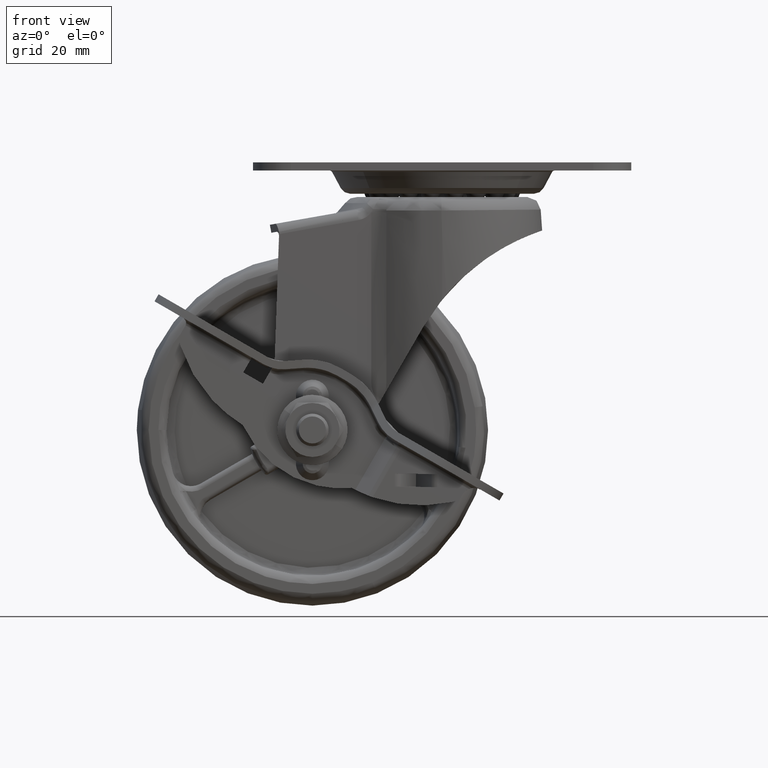
[diagram: clean part render]
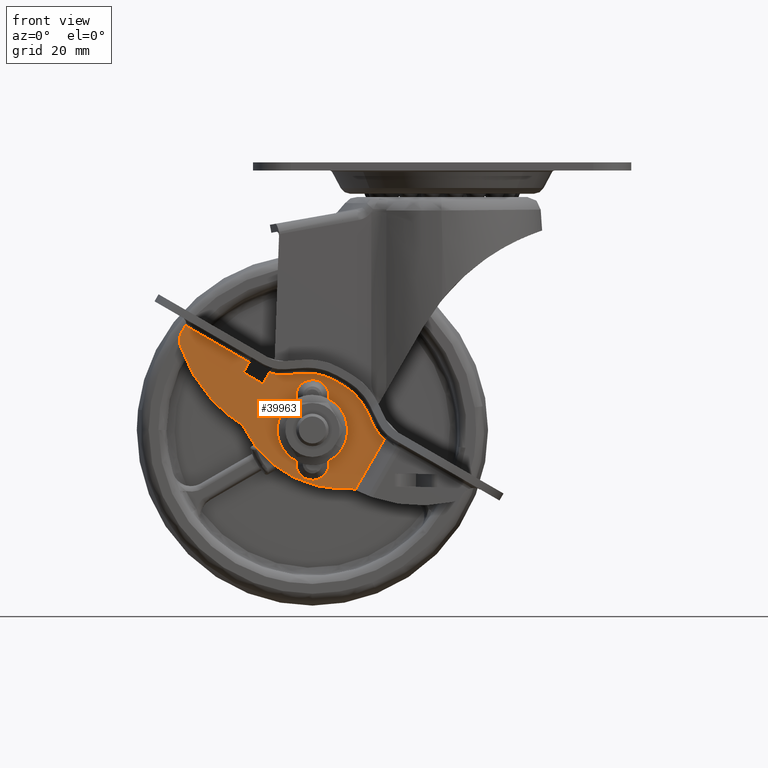
[diagram: same view with one face highlighted and labeled with its STEP entity id]
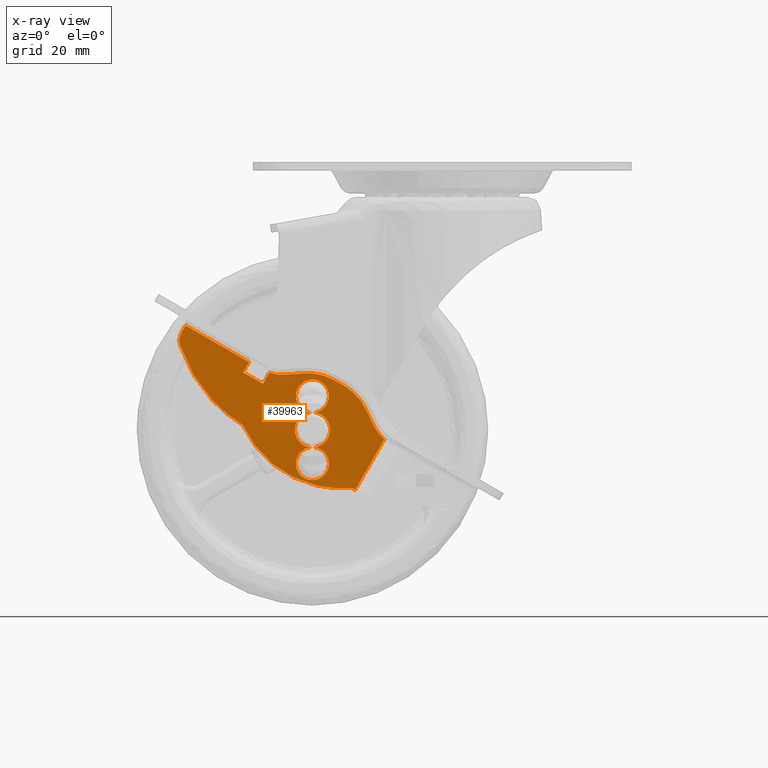
[diagram: x-ray of the same camera — body ghosted, the highlighted face saturated]
A machine part, front view. The second image highlights one B-rep face of the part: STEP entity #39963.
The next image is the same camera in x-ray: the body ghosted, the highlighted face saturated — about 0% of this face is hidden behind the body in this view.
In plain terms, the highlighted face is a freeform B-spline surface patch.
Its self-contained STEP definition (entity closure, byte-faithful):
#35149=CARTESIAN_POINT('',(-18.017215672213030,-16.000019642233958,-39.790541612612913));
#35150=VERTEX_POINT('',#35149);
#35151=CARTESIAN_POINT('',(-19.033357960858549,-16.000019999999999,-41.087434847465950));
#35152=VERTEX_POINT('',#35151);
#35153=CARTESIAN_POINT('',(-18.017215672213030,-16.000019642233958,-39.790541612612913));
#35154=CARTESIAN_POINT('',(-18.120514373103251,-16.000019732529360,-40.029446761748517));
#35155=CARTESIAN_POINT('',(-18.402597348605301,-16.000019893741069,-40.512355435920860));
#35156=CARTESIAN_POINT('',(-18.798453431152272,-16.000019978433269,-40.909015878144643));
#35157=CARTESIAN_POINT('',(-19.033357960858549,-16.000019999999999,-41.087434847465950));
#35158=B_SPLINE_CURVE_WITH_KNOTS('',3,(#35153,#35154,#35155,#35156,#35157),.UNSPECIFIED.,.F.,.U.,(4,1,4),(0.000000021618571,0.780838063789363,1.665757469098318),.UNSPECIFIED.);
#35159=EDGE_CURVE('',#35150,#35152,#35158,.T.);
#35220=CARTESIAN_POINT('',(-18.594735877628370,-16.000017723493809,-36.314318298183338));
#35221=VERTEX_POINT('',#35220);
#35227=CARTESIAN_POINT('',(-22.257111574015301,-16.000016250000051,-35.502973058054948));
#35228=VERTEX_POINT('',#35227);
#35229=CARTESIAN_POINT('',(-22.257111574015301,-16.000016250000051,-35.502973058054948));
#35230=CARTESIAN_POINT('',(-22.026663187920509,-16.000016268296431,-35.406266712717027));
#35231=CARTESIAN_POINT('',(-21.503056545925521,-16.000016344197149,-35.254697168314543));
#35232=CARTESIAN_POINT('',(-20.662847265693120,-16.000016574946230,-35.227804247049761));
#35233=CARTESIAN_POINT('',(-19.947934534780060,-16.000016869906979,-35.400731884860740));
#35234=CARTESIAN_POINT('',(-19.229985005574989,-16.000017248518411,-35.737991274286642));
#35235=CARTESIAN_POINT('',(-18.832687974193831,-16.000017522236721,-36.052095781652412));
#35236=CARTESIAN_POINT('',(-18.594735877628370,-16.000017723493809,-36.314318298183338));
#35237=B_SPLINE_CURVE_WITH_KNOTS('',3,(#35229,#35230,#35231,#35232,#35233,#35234,#35235,#35236),.UNSPECIFIED.,.F.,.U.,(4,1,1,1,1,4),(0.000000121160221,0.749757165791487,1.624502397565848,2.499192261186992,2.936552657182335,3.998712101457427),.UNSPECIFIED.);
#35238=EDGE_CURVE('',#35228,#35221,#35237,.T.);
#35240=CARTESIAN_POINT('',(-22.966956540051100,-16.000015000000001,-35.912804226667362));
#35241=VERTEX_POINT('',#35240);
#35258=CARTESIAN_POINT('',(-19.742579550428751,-16.000018121172850,-41.496897364420199));
#35259=VERTEX_POINT('',#35258);
#35260=CARTESIAN_POINT('',(-19.742579550428751,-16.000018121172850,-41.496897364420199));
#35261=CARTESIAN_POINT('',(-20.148277171262819,-16.000018094564261,-41.667678074325202));
#35262=CARTESIAN_POINT('',(-20.833988373464091,-16.000017984750698,-41.801649745077697));
#35263=CARTESIAN_POINT('',(-21.713260373547211,-16.000017726730100,-41.693822639502251));
#35264=CARTESIAN_POINT('',(-22.294867656954441,-16.000017503814899,-41.497865400532042));
#35265=CARTESIAN_POINT('',(-22.921161466228352,-16.000017210854750,-41.160610743903533));
#35266=CARTESIAN_POINT('',(-23.473933328738010,-16.000016869188510,-40.664708691371523));
#35267=CARTESIAN_POINT('',(-23.918348556291718,-16.000016477225881,-39.986252176577473));
#35268=CARTESIAN_POINT('',(-24.164690015052479,-16.000016147915218,-39.342885872377991));
#35269=CARTESIAN_POINT('',(-24.283279791346910,-16.000015793309359,-38.565409426289939));
#35270=CARTESIAN_POINT('',(-24.209137693805669,-16.000015491626840,-37.802899294968057));
#35271=CARTESIAN_POINT('',(-23.959455616810001,-16.000015261244450,-37.109123642164768));
#35272=CARTESIAN_POINT('',(-23.582667999444560,-16.000015087184462,-36.476318269734243));
#35273=CARTESIAN_POINT('',(-23.220069277139899,-16.000015019327481,-36.105064388150829));
#35274=CARTESIAN_POINT('',(-22.966956540051100,-16.000015000000001,-35.912804226667362));
#35275=B_SPLINE_CURVE_WITH_KNOTS('',3,(#35260,#35261,#35262,#35263,#35264,#35265,#35266,#35267,#35268,#35269,#35270,#35271,#35272,#35273,#35274),.UNSPECIFIED.,.F.,.U.,(4,1,1,1,1,1,1,1,1,1,1,1,4),(0.000000130367040,1.320272135340820,2.053806292533586,2.640623283477431,3.154077773982744,4.181050928594299,4.841103213768497,5.574632400144904,6.234765755835642,7.188351364320509,7.848531124568781,8.435341406021870,9.388862934907825),.UNSPECIFIED.);
#35276=EDGE_CURVE('',#35259,#35241,#35275,.T.);
#35311=CARTESIAN_POINT('',(-18.594735877628370,-16.000017723493809,-36.314318298183338));
#35312=CARTESIAN_POINT('',(-18.333548100716708,-16.000017943952670,-36.601256558219909));
#35313=CARTESIAN_POINT('',(-18.031103947591671,-16.000018276130550,-37.086193956310062));
#35314=CARTESIAN_POINT('',(-17.801946041968719,-16.000018717453521,-37.830142667729682));
#35315=CARTESIAN_POINT('',(-17.722623992014761,-16.000019071904131,-38.488104875262742));
#35316=CARTESIAN_POINT('',(-17.793628879964441,-16.000019394025731,-39.168659206889153));
#35317=CARTESIAN_POINT('',(-17.940188228852801,-16.000019574968430,-39.612521121411248));
#35318=CARTESIAN_POINT('',(-18.017215672213030,-16.000019642233958,-39.790541612612913));
#35319=B_SPLINE_CURVE_WITH_KNOTS('',3,(#35311,#35312,#35313,#35314,#35315,#35316,#35317,#35318),.UNSPECIFIED.,.F.,.U.,(4,1,1,1,1,4),(0.000000114462116,1.163877346851357,1.687620793080430,2.327719666091285,3.142454352687946,3.724383359170298),.UNSPECIFIED.);
#35320=EDGE_CURVE('',#35221,#35150,#35319,.T.);
#37277=CARTESIAN_POINT('',(-50.999996474084703,-16.000019999999999,-33.499954826185700));
#37278=VERTEX_POINT('',#37277);
#37296=CARTESIAN_POINT('',(-37.399987022369650,-16.000019999999999,-33.499976000744397));
#37297=VERTEX_POINT('',#37296);
#37298=CARTESIAN_POINT('',(-37.399987022369650,-16.000019999999999,-33.499976000744397));
#37299=CARTESIAN_POINT('',(-50.999996474084703,-16.000019999999999,-33.499954826185700));
#37300=QUASI_UNIFORM_CURVE('',1,(#37298,#37299),.UNSPECIFIED.,.F.,.U.);
#37301=EDGE_CURVE('',#37297,#37278,#37300,.T.);
#37523=CARTESIAN_POINT('',(-8.591051855042210,-16.000019999999999,-33.359829136149301));
#37524=VERTEX_POINT('',#37523);
#37525=CARTESIAN_POINT('',(-11.590906914351059,-16.000019999999999,-32.120551547690752));
#37526=VERTEX_POINT('',#37525);
#37527=CARTESIAN_POINT('',(-8.591051855042210,-16.000019999999999,-33.359829136149301));
#37528=CARTESIAN_POINT('',(-8.958998520500520,-16.000019999999999,-33.290034882765980));
#37529=CARTESIAN_POINT('',(-10.015120655489991,-16.000020000000021,-33.011707240791907));
#37530=CARTESIAN_POINT('',(-10.999345148026601,-16.000019999999960,-32.522163327138500));
#37531=CARTESIAN_POINT('',(-11.590906914351059,-16.000019999999999,-32.120551547690752));
#37532=B_SPLINE_CURVE_WITH_KNOTS('',3,(#37527,#37528,#37529,#37530,#37531),.UNSPECIFIED.,.F.,.U.,(4,1,4),(7.718829E-009,1.123535371765152,3.268463587536225),.UNSPECIFIED.);
#37533=EDGE_CURVE('',#37524,#37526,#37532,.T.);
#37581=CARTESIAN_POINT('',(-14.386316347930640,-16.000019999999999,-30.224318083926502));
#37582=VERTEX_POINT('',#37581);
#37593=CARTESIAN_POINT('',(-11.590906914351059,-16.000019999999999,-32.120551547690752));
#37594=CARTESIAN_POINT('',(-14.386316347930640,-16.000019999999999,-30.224318083926502));
#37595=QUASI_UNIFORM_CURVE('',1,(#37593,#37594),.UNSPECIFIED.,.F.,.U.);
#37596=EDGE_CURVE('',#37526,#37582,#37595,.T.);
#37626=CARTESIAN_POINT('',(-20.009322474650052,-16.000019999999999,-28.499997121869299));
#37627=VERTEX_POINT('',#37626);
#37639=CARTESIAN_POINT('',(-14.386316347930640,-16.000019999999999,-30.224318083926502));
#37640=CARTESIAN_POINT('',(-15.106648656345310,-16.000020000000031,-29.735326749964639));
#37641=CARTESIAN_POINT('',(-16.227702760894719,-16.000019999999971,-29.172812739318889));
#37642=CARTESIAN_POINT('',(-18.143739631440479,-16.000020000000060,-28.624163540042950));
#37643=CARTESIAN_POINT('',(-19.263093624900971,-16.000019999999921,-28.499145585770471));
#37644=CARTESIAN_POINT('',(-20.009322474650052,-16.000019999999999,-28.499997121869299));
#37645=B_SPLINE_CURVE_WITH_KNOTS('',3,(#37639,#37640,#37641,#37642,#37643,#37644),.UNSPECIFIED.,.F.,.U.,(4,1,1,4),(0.000000017899257,2.611769546903970,3.731076798423298,5.969723327883722),.UNSPECIFIED.);
#37646=EDGE_CURVE('',#37582,#37627,#37645,.T.);
#37677=CARTESIAN_POINT('',(-21.999974069257298,-16.000019999999999,-28.499993780895501));
#37678=VERTEX_POINT('',#37677);
#37689=CARTESIAN_POINT('',(-20.009322474650052,-16.000019999999999,-28.499997121869299));
#37690=CARTESIAN_POINT('',(-21.999974069257298,-16.000019999999999,-28.499993780895501));
#37691=QUASI_UNIFORM_CURVE('',1,(#37689,#37690),.UNSPECIFIED.,.F.,.U.);
#37692=EDGE_CURVE('',#37627,#37678,#37691,.T.);
#37722=CARTESIAN_POINT('',(-27.613634387779602,-16.000019999999999,-30.224307091977352));
#37723=VERTEX_POINT('',#37722);
#37735=CARTESIAN_POINT('',(-21.999974069257298,-16.000019999999999,-28.499993780895501));
#37736=CARTESIAN_POINT('',(-22.745033525756519,-16.000020000000010,-28.499839709472869));
#37737=CARTESIAN_POINT('',(-23.986697403478281,-16.000020000000010,-28.639455758445798));
#37738=CARTESIAN_POINT('',(-25.891196725819700,-16.000019999999989,-29.224433879227799));
#37739=CARTESIAN_POINT('',(-26.997132411869782,-16.000020000000031,-29.805934619115639));
#37740=CARTESIAN_POINT('',(-27.613634387779602,-16.000019999999999,-30.224307091977352));
#37741=B_SPLINE_CURVE_WITH_KNOTS('',3,(#37735,#37736,#37737,#37738,#37739,#37740),.UNSPECIFIED.,.F.,.U.,(4,1,1,4),(0.000000017759270,2.235140436910444,3.725233287092065,5.960373706243392),.UNSPECIFIED.);
#37742=EDGE_CURVE('',#37678,#37723,#37741,.T.);
#37773=CARTESIAN_POINT('',(-30.409052492330950,-16.000019999999999,-32.120522801584002));
#37774=VERTEX_POINT('',#37773);
#37785=CARTESIAN_POINT('',(-27.613634387779602,-16.000019999999999,-30.224307091977352));
#37786=CARTESIAN_POINT('',(-30.409052492330950,-16.000019999999999,-32.120522801584002));
#37787=QUASI_UNIFORM_CURVE('',1,(#37785,#37786),.UNSPECIFIED.,.F.,.U.);
#37788=EDGE_CURVE('',#37723,#37774,#37787,.T.);
#37816=CARTESIAN_POINT('',(-33.199990282989752,-16.000019999999999,-33.317269343655099));
#37817=VERTEX_POINT('',#37816);
#37845=CARTESIAN_POINT('',(-30.409052492330950,-16.000019999999999,-32.120522801584002));
#37846=CARTESIAN_POINT('',(-30.804095709526969,-16.000020000000031,-32.388546851677063));
#37847=CARTESIAN_POINT('',(-31.698238753433220,-16.000019999999960,-32.884537006971769));
#37848=CARTESIAN_POINT('',(-32.671298375162742,-16.000020000000049,-33.202370636357827));
#37849=CARTESIAN_POINT('',(-33.199990282989752,-16.000019999999999,-33.317269343655099));
#37850=B_SPLINE_CURVE_WITH_KNOTS('',3,(#37845,#37846,#37847,#37848,#37849),.UNSPECIFIED.,.F.,.U.,(4,1,4),(7.403998E-009,1.432156357364973,3.055249489058249),.UNSPECIFIED.);
#37851=EDGE_CURVE('',#37774,#37817,#37850,.T.);
#38117=CARTESIAN_POINT('',(-33.199997096650158,-16.000019999999999,-35.699980003479503));
#38118=VERTEX_POINT('',#38117);
#38124=CARTESIAN_POINT('',(-33.199990282989752,-16.000019999999999,-33.317269343655099));
#38125=CARTESIAN_POINT('',(-33.199997096650158,-16.000019999999999,-35.699980003479503));
#38126=QUASI_UNIFORM_CURVE('',1,(#38124,#38125),.UNSPECIFIED.,.F.,.U.);
#38127=EDGE_CURVE('',#37817,#38118,#38126,.T.);
#38146=CARTESIAN_POINT('',(-37.399989431802247,-16.000019999999999,-35.699971686548487));
#38147=VERTEX_POINT('',#38146);
#38153=CARTESIAN_POINT('',(-33.199997096650158,-16.000019999999999,-35.699980003479503));
#38154=CARTESIAN_POINT('',(-37.399989431802247,-16.000019999999999,-35.699971686548487));
#38155=QUASI_UNIFORM_CURVE('',1,(#38153,#38154),.UNSPECIFIED.,.F.,.U.);
#38156=EDGE_CURVE('',#38118,#38147,#38155,.T.);
#38173=CARTESIAN_POINT('',(-37.399989431802247,-16.000019999999999,-35.699971686548487));
#38174=CARTESIAN_POINT('',(-37.399987022369650,-16.000019999999999,-33.499976000744397));
#38175=QUASI_UNIFORM_CURVE('',1,(#38173,#38174),.UNSPECIFIED.,.F.,.U.);
#38176=EDGE_CURVE('',#38147,#37297,#38175,.T.);
#38944=CARTESIAN_POINT('',(-8.591051855042210,-16.000019999999999,-44.155019952589747));
#38945=VERTEX_POINT('',#38944);
#38953=CARTESIAN_POINT('',(-9.395997085352839,-16.000019999999999,-44.189532433555897));
#38954=VERTEX_POINT('',#38953);
#38955=CARTESIAN_POINT('',(-9.395997085352839,-16.000019999999999,-44.189532433555897));
#38956=CARTESIAN_POINT('',(-9.127532548394717,-16.000019999999999,-44.182032719499787));
#38957=CARTESIAN_POINT('',(-8.859172329113953,-16.000020000000010,-44.170526632056600));
#38958=CARTESIAN_POINT('',(-8.591051855042210,-16.000019999999999,-44.155019952589747));
#38959=B_SPLINE_CURVE_WITH_KNOTS('',3,(#38955,#38956,#38957,#38958),.UNSPECIFIED.,.F.,.U.,(4,4),(2.600475E-011,0.805716525155901),.UNSPECIFIED.);
#38960=EDGE_CURVE('',#38954,#38945,#38959,.T.);
#39034=CARTESIAN_POINT('',(-50.018823741829003,-16.000019999999999,-37.172207154365900));
#39035=VERTEX_POINT('',#39034);
#39041=CARTESIAN_POINT('',(-50.999999807819897,-16.000019999999999,-34.953203272540001));
#39042=VERTEX_POINT('',#39041);
#39043=CARTESIAN_POINT('',(-50.999999807819897,-16.000019999999999,-34.953203272540001));
#39044=CARTESIAN_POINT('',(-51.000162993270123,-16.000020000000038,-35.265445217479432));
#39045=CARTESIAN_POINT('',(-50.905718606172911,-16.000019999999950,-35.863778513361332));
#39046=CARTESIAN_POINT('',(-50.535832659047173,-16.000020000000060,-36.619223555950363));
#39047=CARTESIAN_POINT('',(-50.192054341924617,-16.000019999999971,-37.014655384102092));
#39048=CARTESIAN_POINT('',(-50.018823741829003,-16.000019999999999,-37.172207154365900));
#39049=B_SPLINE_CURVE_WITH_KNOTS('',3,(#39043,#39044,#39045,#39046,#39047,#39048),.UNSPECIFIED.,.F.,.U.,(4,1,1,4),(0.000000024321927,0.936696721989518,1.795330519379720,2.497851190716176),.UNSPECIFIED.);
#39050=EDGE_CURVE('',#39042,#39035,#39049,.T.);
#39087=CARTESIAN_POINT('',(-32.604026337628547,-16.000019999999999,-44.189493250757003));
#39088=VERTEX_POINT('',#39087);
#39094=CARTESIAN_POINT('',(-50.018823741829003,-16.000019999999999,-37.172207154365900));
#39095=CARTESIAN_POINT('',(-49.021493081695603,-16.000019999999981,-38.079540329223143));
#39096=CARTESIAN_POINT('',(-46.693300477469073,-16.000020000000070,-39.898654845984083));
#39097=CARTESIAN_POINT('',(-43.084695386785903,-16.000019999999829,-41.867990767086582));
#39098=CARTESIAN_POINT('',(-39.367147347419653,-16.000020000000230,-43.212210914277499));
#39099=CARTESIAN_POINT('',(-35.994509135825389,-16.000019999999878,-43.954299070087309));
#39100=CARTESIAN_POINT('',(-33.702217936087067,-16.000020000000230,-44.158830608696483));
#39101=CARTESIAN_POINT('',(-32.604026337628547,-16.000019999999999,-44.189493250757003));
#39102=B_SPLINE_CURVE_WITH_KNOTS('',3,(#39094,#39095,#39096,#39097,#39098,#39099,#39100,#39101),.UNSPECIFIED.,.F.,.U.,(4,1,1,1,1,4),(0.000000015336784,4.044924212270459,8.838921473894182,12.284595710577770,15.880095486155071,19.175955233069711),.UNSPECIFIED.);
#39103=EDGE_CURVE('',#39035,#39088,#39102,.T.);
#39138=CARTESIAN_POINT('',(-32.604026337628547,-16.000019999999999,-44.189493250757003));
#39139=CARTESIAN_POINT('',(-31.238891251607932,-16.000020000000021,-45.162581609353239));
#39140=CARTESIAN_POINT('',(-29.235191292367169,-16.000019999999981,-46.238886540822932));
#39141=CARTESIAN_POINT('',(-26.114955464712160,-16.000020000000021,-47.286659300341839));
#39142=CARTESIAN_POINT('',(-23.771372699083319,-16.000019999999989,-47.769333822442761));
#39143=CARTESIAN_POINT('',(-21.129437402417519,-16.000020000000021,-47.948422476495523));
#39144=CARTESIAN_POINT('',(-18.613446960224209,-16.000019999999989,-47.814488802910333));
#39145=CARTESIAN_POINT('',(-16.008452048791959,-16.000020000000010,-47.330345927788692));
#39146=CARTESIAN_POINT('',(-12.817644442126820,-16.000019999999971,-46.275992456353720));
#39147=CARTESIAN_POINT('',(-10.656164341799240,-16.000020000000060,-45.087672072015764));
#39148=CARTESIAN_POINT('',(-9.395997085352839,-16.000019999999999,-44.189532433555897));
#39149=B_SPLINE_CURVE_WITH_KNOTS('',3,(#39138,#39139,#39140,#39141,#39142,#39143,#39144,#39145,#39146,#39147,#39148),.UNSPECIFIED.,.F.,.U.,(4,1,1,1,1,1,1,1,4),(0.000000023966610,5.029185978321582,6.770067587638945,9.864970162153835,12.186128679911180,14.700702803575510,17.408742882780562,20.116776339846300,24.759101577735191),.UNSPECIFIED.);
#39150=EDGE_CURVE('',#39088,#38954,#39149,.T.);
#39478=CARTESIAN_POINT('',(-50.999999807819897,-16.000019999999999,-34.953203272540001));
#39479=CARTESIAN_POINT('',(-50.999996474084703,-16.000019999999999,-33.499954826185700));
#39480=QUASI_UNIFORM_CURVE('',1,(#39478,#39479),.UNSPECIFIED.,.F.,.U.);
#39481=EDGE_CURVE('',#39042,#37278,#39480,.T.);
#39503=CARTESIAN_POINT('',(-8.591051855042210,-16.000019999999999,-33.359829136149301));
#39504=CARTESIAN_POINT('',(-8.591051855042210,-16.000019999999999,-44.155019952589747));
#39505=QUASI_UNIFORM_CURVE('',1,(#39503,#39504),.UNSPECIFIED.,.F.,.U.);
#39506=EDGE_CURVE('',#37524,#38945,#39505,.T.);
#39746=CARTESIAN_POINT('',(-22.718405054129349,-16.000019549309471,-30.377136198804472));
#39747=VERTEX_POINT('',#39746);
#39748=CARTESIAN_POINT('',(-22.718405054129349,-16.000019549309471,-30.377136198804472));
#39749=CARTESIAN_POINT('',(-22.421143599603539,-16.000019824470641,-30.531144162413121));
#39750=CARTESIAN_POINT('',(-22.020612648537739,-16.000020124189959,-30.831811397043150));
#39751=CARTESIAN_POINT('',(-21.575575751883932,-16.000020296439040,-31.376734983662381));
#39752=CARTESIAN_POINT('',(-21.273301260346450,-16.000020278579029,-31.923706220374299));
#39753=CARTESIAN_POINT('',(-21.061817120709531,-16.000019992372721,-32.665347888735639));
#39754=CARTESIAN_POINT('',(-21.059130242282929,-16.000019418325941,-33.422831917503302));
#39755=CARTESIAN_POINT('',(-21.244947595383081,-16.000018591666120,-34.185108757439139));
#39756=CARTESIAN_POINT('',(-21.605116381160791,-16.000017580821730,-34.886951387549203));
#39757=CARTESIAN_POINT('',(-22.017423192611489,-16.000016707747989,-35.317809648856773));
#39758=CARTESIAN_POINT('',(-22.257111574015301,-16.000016250000051,-35.502973058054948));
#39759=B_SPLINE_CURVE_WITH_KNOTS('',3,(#39748,#39749,#39750,#39751,#39752,#39753,#39754,#39755,#39756,#39757,#39758),.UNSPECIFIED.,.F.,.U.,(4,1,1,1,1,1,1,1,4),(0.000000310179895,1.004260975471072,1.482502022105747,2.104211987417568,2.869411103436465,3.777977246822137,4.351853382136952,5.212691150588297,6.121293148353177),.UNSPECIFIED.);
#39760=EDGE_CURVE('',#39747,#35228,#39759,.T.);
#39762=CARTESIAN_POINT('',(-27.175443142257620,-16.000011700696881,-32.950421334112711));
#39763=VERTEX_POINT('',#39762);
#39764=CARTESIAN_POINT('',(-27.175443142257620,-16.000011700696881,-32.950421334112711));
#39765=CARTESIAN_POINT('',(-27.162661351994831,-16.000011936149630,-32.663776617507182));
#39766=CARTESIAN_POINT('',(-27.055454000878949,-16.000012512053729,-32.094196860036348));
#39767=CARTESIAN_POINT('',(-26.649083593357851,-16.000013662445170,-31.289369114603382));
#39768=CARTESIAN_POINT('',(-26.034212726907871,-16.000014962569630,-30.649304256365522));
#39769=CARTESIAN_POINT('',(-25.334638278642590,-16.000016188845439,-30.252797263745862));
#39770=CARTESIAN_POINT('',(-24.734188433828429,-16.000017113892891,-30.079647489697869));
#39771=CARTESIAN_POINT('',(-24.162256256192119,-16.000017916798409,-30.017286733037800));
#39772=CARTESIAN_POINT('',(-23.490434534285558,-16.000018767398949,-30.065387923583788));
#39773=CARTESIAN_POINT('',(-22.987171212271480,-16.000019300827820,-30.237494793200192));
#39774=CARTESIAN_POINT('',(-22.718405054129349,-16.000019549309471,-30.377136198804472));
#39775=B_SPLINE_CURVE_WITH_KNOTS('',3,(#39764,#39765,#39766,#39767,#39768,#39769,#39770,#39771,#39772,#39773,#39774),.UNSPECIFIED.,.F.,.U.,(4,1,1,1,1,1,1,1,4),(0.000000310071613,0.860776723820931,1.721616682652161,2.678072813706866,3.491001427478537,4.112730394099772,4.543144199859666,5.212689799854311,6.121291562092780),.UNSPECIFIED.);
#39776=EDGE_CURVE('',#39763,#39747,#39775,.T.);
#39778=CARTESIAN_POINT('',(-22.966956540051100,-16.000015000000001,-35.912804226667362));
#39779=CARTESIAN_POINT('',(-23.320868043143069,-16.000014421662780,-36.058275154405372));
#39780=CARTESIAN_POINT('',(-23.909112042333209,-16.000013553844511,-36.177512991145420));
#39781=CARTESIAN_POINT('',(-24.643308640861552,-16.000012634042900,-36.112129290756982));
#39782=CARTESIAN_POINT('',(-25.199147120284621,-16.000012013122131,-35.963702215088169));
#39783=CARTESIAN_POINT('',(-25.735721849417171,-16.000011497598969,-35.710417045782783));
#39784=CARTESIAN_POINT('',(-26.204319480311689,-16.000011156251482,-35.346449276102632));
#39785=CARTESIAN_POINT('',(-26.641481951816381,-16.000010951028109,-34.858408667449822));
#39786=CARTESIAN_POINT('',(-26.952882905848352,-16.000010955482399,-34.313210406976353));
#39787=CARTESIAN_POINT('',(-27.154691935474851,-16.000011216387481,-33.621508143785192));
#39788=CARTESIAN_POINT('',(-27.186223247890052,-16.000011504317548,-33.189290263853472));
#39789=CARTESIAN_POINT('',(-27.175443142257620,-16.000011700696881,-32.950421334112711));
#39790=B_SPLINE_CURVE_WITH_KNOTS('',3,(#39778,#39779,#39780,#39781,#39782,#39783,#39784,#39785,#39786,#39787,#39788,#39789),.UNSPECIFIED.,.F.,.U.,(4,1,1,1,1,1,1,1,1,4),(0.000000310195257,1.147743376130833,1.769451661931250,2.199847864966079,2.869417982486868,3.538866875892420,3.969258266089974,4.830098098391975,5.403975609187953,6.121307822781929),.UNSPECIFIED.);
#39791=EDGE_CURVE('',#35241,#39763,#39790,.T.);
#39828=CARTESIAN_POINT('',(-19.281728948834871,-16.000013156738390,-46.622905931643452));
#39829=VERTEX_POINT('',#39828);
#39830=CARTESIAN_POINT('',(-19.281728948834871,-16.000013156738390,-46.622905931643452));
#39831=CARTESIAN_POINT('',(-19.607338018479769,-16.000012703277939,-46.454236729809359));
#39832=CARTESIAN_POINT('',(-20.068096401576700,-16.000012197837751,-46.096793552380127));
#39833=CARTESIAN_POINT('',(-20.577951041762539,-16.000011986910270,-45.397568586094337));
#39834=CARTESIAN_POINT('',(-20.833279395517430,-16.000012197813199,-44.771466416062196));
#39835=CARTESIAN_POINT('',(-20.953197421772241,-16.000012811209690,-44.029027087599282));
#39836=CARTESIAN_POINT('',(-20.906906095477979,-16.000013695504268,-43.338316218110812));
#39837=CARTESIAN_POINT('',(-20.661506458398769,-16.000015039522509,-42.591706563297457));
#39838=CARTESIAN_POINT('',(-20.276875074523328,-16.000016506986341,-41.978641130084320));
#39839=CARTESIAN_POINT('',(-19.919149665134171,-16.000017613800669,-41.633371648330602));
#39840=CARTESIAN_POINT('',(-19.742579550428751,-16.000018121172850,-41.496897364420199));
#39841=B_SPLINE_CURVE_WITH_KNOTS('',3,(#39830,#39831,#39832,#39833,#39834,#39835,#39836,#39837,#39838,#39839,#39840),.UNSPECIFIED.,.F.,.U.,(4,1,1,1,1,1,1,1,4),(0.000000310150997,1.099948217464837,1.721685210167542,2.582550165080400,3.108534420292155,3.969405712020887,4.638977965256303,5.452030596699525,6.121535214211643),.UNSPECIFIED.);
#39842=EDGE_CURVE('',#39829,#35259,#39841,.T.);
#39844=CARTESIAN_POINT('',(-14.824550902119899,-16.000024964441121,-44.049582440300647));
#39845=VERTEX_POINT('',#39844);
#39846=CARTESIAN_POINT('',(-14.824550902119899,-16.000024964441121,-44.049582440300647));
#39847=CARTESIAN_POINT('',(-14.839365398771740,-16.000024551345941,-44.384041656075929));
#39848=CARTESIAN_POINT('',(-14.977298436205411,-16.000023534027811,-45.031987315581020));
#39849=CARTESIAN_POINT('',(-15.401711659755721,-16.000021860363429,-45.755904896326633));
#39850=CARTESIAN_POINT('',(-15.904705025999640,-16.000020269939249,-46.271151125401623));
#39851=CARTESIAN_POINT('',(-16.406990963985859,-16.000018876110470,-46.616238860308023));
#39852=CARTESIAN_POINT('',(-17.044155293621429,-16.000017309278149,-46.878525745480019));
#39853=CARTESIAN_POINT('',(-17.725848422217219,-16.000015825944828,-46.990894428088303));
#39854=CARTESIAN_POINT('',(-18.509683283381580,-16.000014333031139,-46.934698790363633));
#39855=CARTESIAN_POINT('',(-19.012957882755870,-16.000013530547019,-46.762564961792620));
#39856=CARTESIAN_POINT('',(-19.281728948834871,-16.000013156738390,-46.622905931643452));
#39857=B_SPLINE_CURVE_WITH_KNOTS('',3,(#39846,#39847,#39848,#39849,#39850,#39851,#39852,#39853,#39854,#39855,#39856),.UNSPECIFIED.,.F.,.U.,(4,1,1,1,1,1,1,1,4),(0.000000310252837,1.004303268710667,1.960811808165285,2.486919998616886,3.156382557772899,3.778136356208744,4.543336714257285,5.212910688864031,6.121550950318430),.UNSPECIFIED.);
#39858=EDGE_CURVE('',#39845,#39829,#39857,.T.);
#39860=CARTESIAN_POINT('',(-19.033357960858549,-16.000019999999999,-41.087434847465950));
#39861=CARTESIAN_POINT('',(-18.767897238939419,-16.000020652395399,-40.978499987889769));
#39862=CARTESIAN_POINT('',(-18.206018680132509,-16.000021931935411,-40.836262588496972));
#39863=CARTESIAN_POINT('',(-17.369257691646322,-16.000023562083811,-40.864494529038261));
#39864=CARTESIAN_POINT('',(-16.555719128506119,-16.000024889758642,-41.116187402099563));
#39865=CARTESIAN_POINT('',(-15.919646967104020,-16.000025681622660,-41.527593620954342));
#39866=CARTESIAN_POINT('',(-15.426496816933881,-16.000026058806782,-42.052949824134430));
#39867=CARTESIAN_POINT('',(-15.074181362447380,-16.000026100252690,-42.627052995560149));
#39868=CARTESIAN_POINT('',(-14.849938912048160,-16.000025757311761,-43.314417850718968));
#39869=CARTESIAN_POINT('',(-14.813792180419600,-16.000025259835081,-43.810704986479422));
#39870=CARTESIAN_POINT('',(-14.824550902119899,-16.000024964441121,-44.049582440300647));
#39871=B_SPLINE_CURVE_WITH_KNOTS('',3,(#39860,#39861,#39862,#39863,#39864,#39865,#39866,#39867,#39868,#39869,#39870),.UNSPECIFIED.,.F.,.U.,(4,1,1,1,1,1,1,1,4),(0.000000310278611,0.860812092487168,1.721687428269505,2.486916809296416,3.395502435022751,3.969410825214342,4.638983941194436,5.404183317382669,6.121543100028024),.UNSPECIFIED.);
#39872=EDGE_CURVE('',#35152,#39845,#39871,.T.);
#39927=CARTESIAN_POINT('',(-53.118327073969233,-16.000019999999999,-48.869079869922508));
#39928=CARTESIAN_POINT('',(-6.472723830561784,-16.000019999999999,-48.869079869922508));
#39929=CARTESIAN_POINT('',(-53.118327073969233,-16.000019999999999,-27.530962081608539));
#39930=CARTESIAN_POINT('',(-6.472723830561784,-16.000019999999999,-27.530962081608539));
#39931=B_SPLINE_SURFACE_WITH_KNOTS('',1,1,((#39927,#39929),(#39928,#39930)),.UNSPECIFIED.,.F.,.F.,.U.,(2,2),(2,2),(0.0,46.645603243407450),(0.0,21.338117788313969),.UNSPECIFIED.);
#39932=ORIENTED_EDGE('',*,*,#39506,.F.);
#39933=ORIENTED_EDGE('',*,*,#37533,.T.);
#39934=ORIENTED_EDGE('',*,*,#37596,.T.);
#39935=ORIENTED_EDGE('',*,*,#37646,.T.);
#39936=ORIENTED_EDGE('',*,*,#37692,.T.);
#39937=ORIENTED_EDGE('',*,*,#37742,.T.);
#39938=ORIENTED_EDGE('',*,*,#37788,.T.);
#39939=ORIENTED_EDGE('',*,*,#37851,.T.);
#39940=ORIENTED_EDGE('',*,*,#38127,.T.);
#39941=ORIENTED_EDGE('',*,*,#38156,.T.);
#39942=ORIENTED_EDGE('',*,*,#38176,.T.);
#39943=ORIENTED_EDGE('',*,*,#37301,.T.);
#39944=ORIENTED_EDGE('',*,*,#39481,.F.);
#39945=ORIENTED_EDGE('',*,*,#39050,.T.);
#39946=ORIENTED_EDGE('',*,*,#39103,.T.);
#39947=ORIENTED_EDGE('',*,*,#39150,.T.);
#39948=ORIENTED_EDGE('',*,*,#38960,.T.);
#39949=EDGE_LOOP('',(#39932,#39933,#39934,#39935,#39936,#39937,#39938,#39939,#39940,#39941,#39942,#39943,#39944,#39945,#39946,#39947,#39948));
#39950=FACE_OUTER_BOUND('',#39949,.T.);
#39951=ORIENTED_EDGE('',*,*,#35276,.T.);
#39952=ORIENTED_EDGE('',*,*,#39791,.T.);
#39953=ORIENTED_EDGE('',*,*,#39776,.T.);
#39954=ORIENTED_EDGE('',*,*,#39760,.T.);
#39955=ORIENTED_EDGE('',*,*,#35238,.T.);
#39956=ORIENTED_EDGE('',*,*,#35320,.T.);
#39957=ORIENTED_EDGE('',*,*,#35159,.T.);
#39958=ORIENTED_EDGE('',*,*,#39872,.T.);
#39959=ORIENTED_EDGE('',*,*,#39858,.T.);
#39960=ORIENTED_EDGE('',*,*,#39842,.T.);
#39961=EDGE_LOOP('',(#39951,#39952,#39953,#39954,#39955,#39956,#39957,#39958,#39959,#39960));
#39962=FACE_BOUND('',#39961,.T.);
#39963=ADVANCED_FACE('',(#39950,#39962),#39931,.T.);